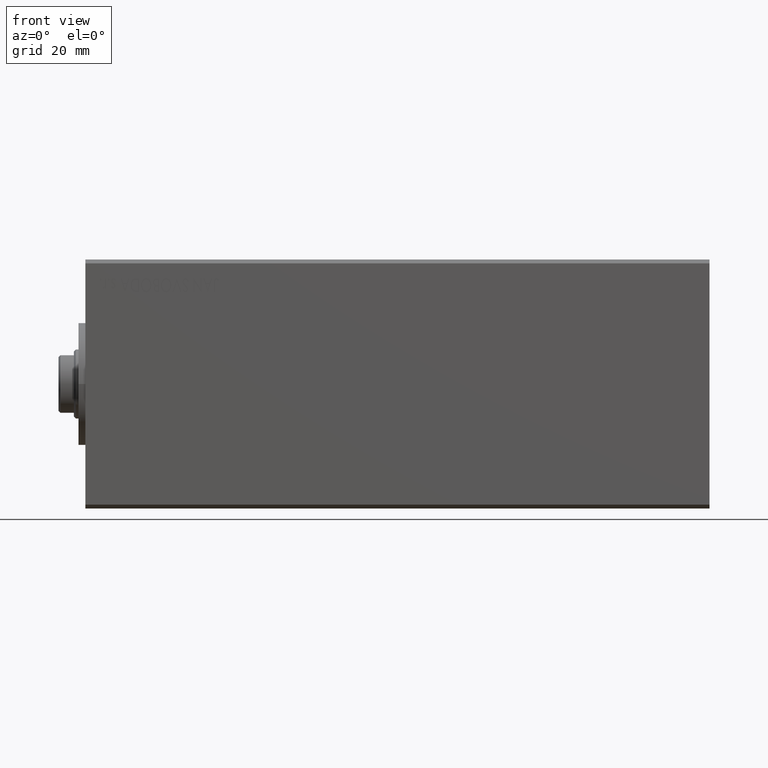
[diagram: clean part render]
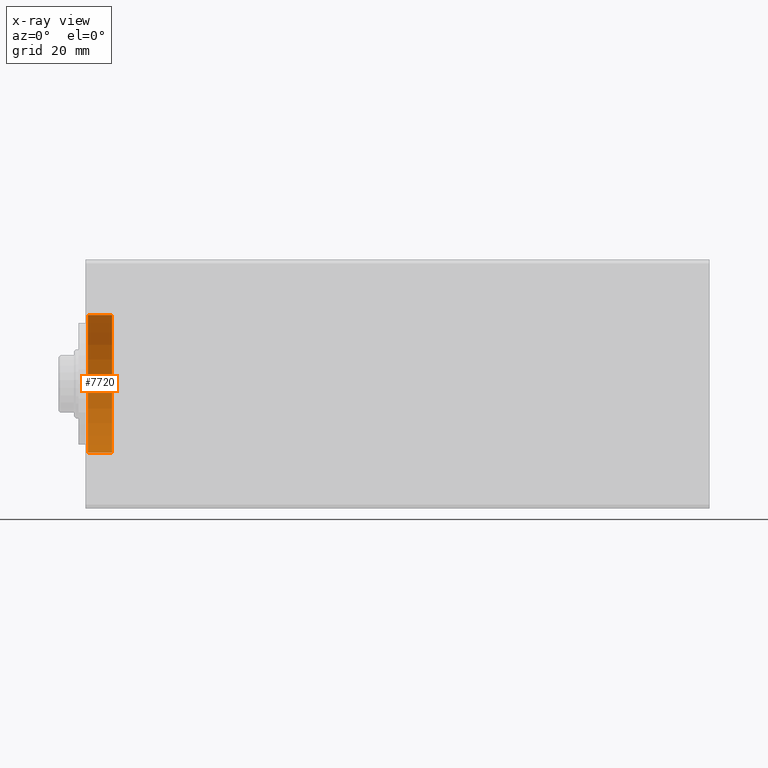
[diagram: x-ray — body ghosted, one internal face saturated and labeled with its STEP entity id]
A machine part, front view, then the same camera in x-ray: the body is ghosted and one INTERNAL B-rep face — a face not visible from any outside direction — is saturated and labeled: STEP entity #7720.
In plain terms, the highlighted cylindrical surface (partial cylindrical patch) has radius 18 mm, axis along (-1, -0, -0).
Its self-contained STEP definition (entity closure, byte-faithful):
#812 = EDGE_CURVE ( 'NONE', #34776, #16631, #14202, .T. ) ;
#1706 = CIRCLE ( 'NONE', #12678, 18.00000000000000000 ) ;
#1905 = DIRECTION ( 'NONE',  ( -1.000000000000000000, 0.000000000000000000, 0.000000000000000000 ) ) ;
#4222 = CARTESIAN_POINT ( 'NONE',  ( 0.6999999999999749756, 0.000000000000000000, 18.00000000000000000 ) ) ;
#4277 = CARTESIAN_POINT ( 'NONE',  ( 0.6999999999999749756, 2.204364238465235428E-15, -18.00000000000000000 ) ) ;
#4426 = EDGE_LOOP ( 'NONE', ( #45035, #16025, #44374, #8471 ) ) ;
#4451 = CARTESIAN_POINT ( 'NONE',  ( 0.6999999999999749756, 0.000000000000000000, 0.000000000000000000 ) ) ;
#4673 = DIRECTION ( 'NONE',  ( -1.000000000000000000, 0.000000000000000000, 0.000000000000000000 ) ) ;
#6086 = CARTESIAN_POINT ( 'NONE',  ( 7.000000000000000000, 0.000000000000000000, 18.00000000000000000 ) ) ;
#6846 = CARTESIAN_POINT ( 'NONE',  ( 7.000000000000000000, 2.204364238465235428E-15, -18.00000000000000000 ) ) ;
#7720 = ADVANCED_FACE ( 'NONE', ( #7811 ), #14222, .F. ) ;
#7811 = FACE_OUTER_BOUND ( 'NONE', #4426, .T. ) ;
#8471 = ORIENTED_EDGE ( 'NONE', *, *, #812, .T. ) ;
#8551 = CARTESIAN_POINT ( 'NONE',  ( 7.000000000000000000, 0.000000000000000000, 0.000000000000000000 ) ) ;
#9085 = DIRECTION ( 'NONE',  ( -1.000000000000000000, -0.000000000000000000, -0.000000000000000000 ) ) ;
#12678 = AXIS2_PLACEMENT_3D ( 'NONE', #8551, #1905, #22942 ) ;
#13682 = CARTESIAN_POINT ( 'NONE',  ( 7.000000000000000000, 0.000000000000000000, 18.00000000000000000 ) ) ;
#14202 = CIRCLE ( 'NONE', #25894, 18.00000000000000000 ) ;
#14222 = CYLINDRICAL_SURFACE ( 'NONE', #28986, 18.00000000000000000 ) ;
#16025 = ORIENTED_EDGE ( 'NONE', *, *, #29186, .F. ) ;
#16169 = LINE ( 'NONE', #6086, #26940 ) ;
#16583 = VERTEX_POINT ( 'NONE', #13682 ) ;
#16631 = VERTEX_POINT ( 'NONE', #4277 ) ;
#22661 = EDGE_CURVE ( 'NONE', #36622, #16631, #24235, .T. ) ;
#22942 = DIRECTION ( 'NONE',  ( 0.000000000000000000, 0.000000000000000000, 1.000000000000000000 ) ) ;
#24235 = LINE ( 'NONE', #6846, #35843 ) ;
#25894 = AXIS2_PLACEMENT_3D ( 'NONE', #4451, #4673, #32546 ) ;
#26940 = VECTOR ( 'NONE', #9085, 1000.000000000000000 ) ;
#28837 = DIRECTION ( 'NONE',  ( 0.000000000000000000, 0.000000000000000000, 1.000000000000000000 ) ) ;
#28986 = AXIS2_PLACEMENT_3D ( 'NONE', #42765, #31565, #28837 ) ;
#29186 = EDGE_CURVE ( 'NONE', #16583, #36622, #1706, .T. ) ;
#31565 = DIRECTION ( 'NONE',  ( -1.000000000000000000, -0.000000000000000000, -0.000000000000000000 ) ) ;
#32546 = DIRECTION ( 'NONE',  ( 0.000000000000000000, 0.000000000000000000, -1.000000000000000000 ) ) ;
#34717 = DIRECTION ( 'NONE',  ( -1.000000000000000000, -0.000000000000000000, -0.000000000000000000 ) ) ;
#34776 = VERTEX_POINT ( 'NONE', #4222 ) ;
#35843 = VECTOR ( 'NONE', #34717, 1000.000000000000000 ) ;
#36622 = VERTEX_POINT ( 'NONE', #43904 ) ;
#42765 = CARTESIAN_POINT ( 'NONE',  ( 7.000000000000000000, 0.000000000000000000, 0.000000000000000000 ) ) ;
#43904 = CARTESIAN_POINT ( 'NONE',  ( 7.000000000000000000, 2.204364238465235428E-15, -18.00000000000000000 ) ) ;
#44374 = ORIENTED_EDGE ( 'NONE', *, *, #45018, .T. ) ;
#45018 = EDGE_CURVE ( 'NONE', #16583, #34776, #16169, .T. ) ;
#45035 = ORIENTED_EDGE ( 'NONE', *, *, #22661, .F. ) ;